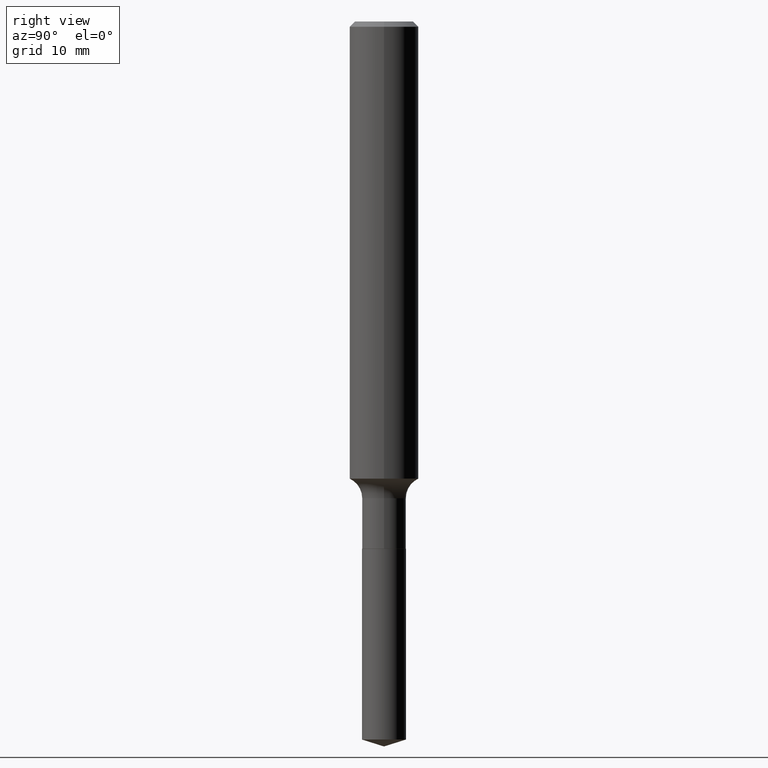
[diagram: clean part render]
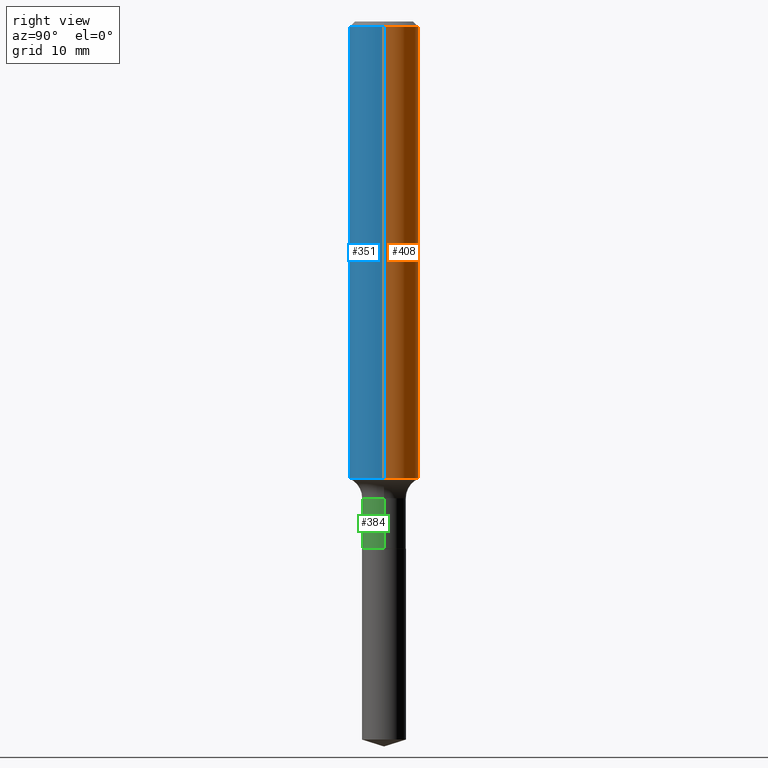
[diagram: same view with three faces highlighted in distinct colors, each labeled with its STEP entity id]
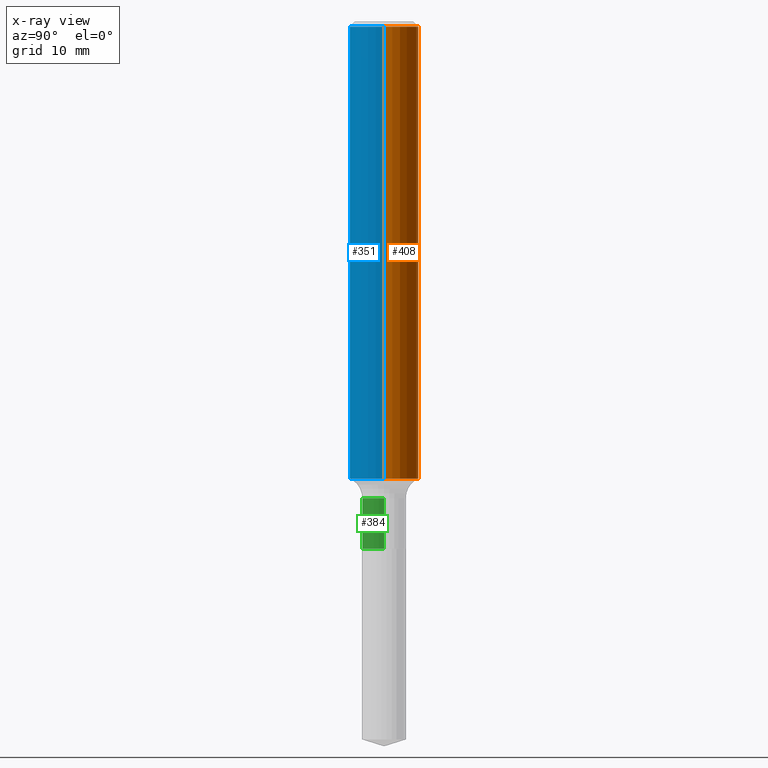
[diagram: x-ray of the same camera — body ghosted, the three highlighted faces saturated]
A machine part, right view with three faces highlighted in distinct colors.
The next image is the same camera in x-ray (body ghosted, the three faces saturated) — at least one of them is partly hidden behind the body in this view.
Their STEP definitions:

[orange] entity #408 — the highlighted cylindrical surface (edge-blend (fillet) strip) has radius 3.175 mm, axis along (-0, 0, 1).
#9 = LINE ( 'NONE', #315, #55 ) ;
#20 = DIRECTION ( 'NONE',  ( -2.445468806185136597E-29, 3.491481338843145583E-15, 1.000000000000000000 ) ) ;
#50 = DIRECTION ( 'NONE',  ( -2.445468806185136877E-29, 3.491481338843145188E-15, 1.000000000000000000 ) ) ;
#55 = VECTOR ( 'NONE', #162, 39.37007874015748143 ) ;
#71 = CARTESIAN_POINT ( 'NONE',  ( 4.585254011597163874E-31, -6.546527510330944066E-17, -0.01875000000000013461 ) ) ;
#98 = AXIS2_PLACEMENT_3D ( 'NONE', #284, #433, #322 ) ;
#99 = CIRCLE ( 'NONE', #211, 0.1250000000000000000 ) ;
#103 = ORIENTED_EDGE ( 'NONE', *, *, #168, .T. ) ;
#105 = CIRCLE ( 'NONE', #98, 0.1250000000000001943 ) ;
#113 = AXIS2_PLACEMENT_3D ( 'NONE', #319, #20, #173 ) ;
#127 = CARTESIAN_POINT ( 'NONE',  ( 0.1250000000000001110, -8.728703347107841277E-16, 6.095220969744924646E-30 ) ) ;
#162 = DIRECTION ( 'NONE',  ( -2.445468806185136877E-29, 3.491481338843145188E-15, 1.000000000000000000 ) ) ;
#168 = EDGE_CURVE ( 'NONE', #250, #253, #9, .T. ) ;
#173 = DIRECTION ( 'NONE',  ( 1.000000000000000000, -6.982962677686266711E-15, 4.876176775795935232E-29 ) ) ;
#176 = CYLINDRICAL_SURFACE ( 'NONE', #113, 0.1250000000000001110 ) ;
#204 = VECTOR ( 'NONE', #50, 39.37007874015748143 ) ;
#208 = LINE ( 'NONE', #127, #204 ) ;
#211 = AXIS2_PLACEMENT_3D ( 'NONE', #71, #443, #261 ) ;
#214 = ORIENTED_EDGE ( 'NONE', *, *, #460, .F. ) ;
#218 = EDGE_LOOP ( 'NONE', ( #254, #103, #214, #361 ) ) ;
#250 = VERTEX_POINT ( 'NONE', #419 ) ;
#252 = CARTESIAN_POINT ( 'NONE',  ( -0.1250000000000000000, -2.034092601808150261E-15, -0.01875000000000013461 ) ) ;
#253 = VERTEX_POINT ( 'NONE', #252 ) ;
#254 = ORIENTED_EDGE ( 'NONE', *, *, #276, .T. ) ;
#256 = EDGE_CURVE ( 'NONE', #332, #480, #208, .T. ) ;
#261 = DIRECTION ( 'NONE',  ( 1.000000000000000000, -6.982962677686266711E-15, 0.000000000000000000 ) ) ;
#276 = EDGE_CURVE ( 'NONE', #332, #250, #105, .T. ) ;
#284 = CARTESIAN_POINT ( 'NONE',  ( 4.047723757608193363E-29, -5.779076767913244997E-15, -1.655193371254867873 ) ) ;
#315 = CARTESIAN_POINT ( 'NONE',  ( -0.1250000000000001110, 8.881784197001260212E-16, -6.148668862818637832E-30 ) ) ;
#319 = CARTESIAN_POINT ( 'NONE',  ( 0.000000000000000000, 0.000000000000000000, 0.000000000000000000 ) ) ;
#322 = DIRECTION ( 'NONE',  ( 1.000000000000000000, -6.982962677686267499E-15, 0.000000000000000000 ) ) ;
#332 = VERTEX_POINT ( 'NONE', #440 ) ;
#358 = FACE_OUTER_BOUND ( 'NONE', #218, .T. ) ;
#361 = ORIENTED_EDGE ( 'NONE', *, *, #256, .F. ) ;
#401 = CARTESIAN_POINT ( 'NONE',  ( 0.1250000000000000000, -9.383356098140928781E-16, -0.01875000000000013461 ) ) ;
#408 = ADVANCED_FACE ( 'NONE', ( #358 ), #176, .T. ) ;
#419 = CARTESIAN_POINT ( 'NONE',  ( -0.1250000000000001665, -4.890898348213118976E-15, -1.655193371254867873 ) ) ;
#433 = DIRECTION ( 'NONE',  ( -2.445468806185136597E-29, 3.491481338843145583E-15, 1.000000000000000000 ) ) ;
#440 = CARTESIAN_POINT ( 'NONE',  ( 0.1250000000000001665, -6.651947102624029913E-15, -1.655193371254867873 ) ) ;
#443 = DIRECTION ( 'NONE',  ( -2.445468806185136597E-29, 3.491481338843145583E-15, 1.000000000000000000 ) ) ;
#460 = EDGE_CURVE ( 'NONE', #480, #253, #99, .T. ) ;
#480 = VERTEX_POINT ( 'NONE', #401 ) ;

[blue] entity #351 — the highlighted cylindrical surface (edge-blend (fillet) strip) has radius 3.175 mm, axis along (-0, 0, 1).
#5 = DIRECTION ( 'NONE',  ( -2.445468806185136597E-29, 3.491481338843145583E-15, 1.000000000000000000 ) ) ;
#9 = LINE ( 'NONE', #315, #55 ) ;
#46 = CARTESIAN_POINT ( 'NONE',  ( 4.047723757608193363E-29, -5.779076767913244997E-15, -1.655193371254867873 ) ) ;
#50 = DIRECTION ( 'NONE',  ( -2.445468806185136877E-29, 3.491481338843145188E-15, 1.000000000000000000 ) ) ;
#55 = VECTOR ( 'NONE', #162, 39.37007874015748143 ) ;
#68 = ORIENTED_EDGE ( 'NONE', *, *, #256, .T. ) ;
#78 = EDGE_CURVE ( 'NONE', #250, #332, #450, .T. ) ;
#100 = CARTESIAN_POINT ( 'NONE',  ( 0.000000000000000000, 0.000000000000000000, 0.000000000000000000 ) ) ;
#127 = CARTESIAN_POINT ( 'NONE',  ( 0.1250000000000001110, -8.728703347107841277E-16, 6.095220969744924646E-30 ) ) ;
#128 = AXIS2_PLACEMENT_3D ( 'NONE', #100, #431, #390 ) ;
#133 = DIRECTION ( 'NONE',  ( 1.000000000000000000, -6.982962677686266711E-15, 0.000000000000000000 ) ) ;
#162 = DIRECTION ( 'NONE',  ( -2.445468806185136877E-29, 3.491481338843145188E-15, 1.000000000000000000 ) ) ;
#168 = EDGE_CURVE ( 'NONE', #250, #253, #9, .T. ) ;
#178 = EDGE_LOOP ( 'NONE', ( #452, #339, #68, #290 ) ) ;
#204 = VECTOR ( 'NONE', #50, 39.37007874015748143 ) ;
#208 = LINE ( 'NONE', #127, #204 ) ;
#215 = DIRECTION ( 'NONE',  ( -2.445468806185136597E-29, 3.491481338843145583E-15, 1.000000000000000000 ) ) ;
#220 = CIRCLE ( 'NONE', #349, 0.1250000000000000000 ) ;
#242 = AXIS2_PLACEMENT_3D ( 'NONE', #46, #5, #378 ) ;
#250 = VERTEX_POINT ( 'NONE', #419 ) ;
#252 = CARTESIAN_POINT ( 'NONE',  ( -0.1250000000000000000, -2.034092601808150261E-15, -0.01875000000000013461 ) ) ;
#253 = VERTEX_POINT ( 'NONE', #252 ) ;
#256 = EDGE_CURVE ( 'NONE', #332, #480, #208, .T. ) ;
#290 = ORIENTED_EDGE ( 'NONE', *, *, #414, .F. ) ;
#315 = CARTESIAN_POINT ( 'NONE',  ( -0.1250000000000001110, 8.881784197001260212E-16, -6.148668862818637832E-30 ) ) ;
#332 = VERTEX_POINT ( 'NONE', #440 ) ;
#339 = ORIENTED_EDGE ( 'NONE', *, *, #78, .T. ) ;
#349 = AXIS2_PLACEMENT_3D ( 'NONE', #472, #215, #133 ) ;
#351 = ADVANCED_FACE ( 'NONE', ( #362 ), #352, .T. ) ;
#352 = CYLINDRICAL_SURFACE ( 'NONE', #128, 0.1250000000000001110 ) ;
#362 = FACE_OUTER_BOUND ( 'NONE', #178, .T. ) ;
#378 = DIRECTION ( 'NONE',  ( 1.000000000000000000, -6.982962677686267499E-15, 0.000000000000000000 ) ) ;
#390 = DIRECTION ( 'NONE',  ( 1.000000000000000000, -6.982962677686266711E-15, 4.876176775795935232E-29 ) ) ;
#401 = CARTESIAN_POINT ( 'NONE',  ( 0.1250000000000000000, -9.383356098140928781E-16, -0.01875000000000013461 ) ) ;
#414 = EDGE_CURVE ( 'NONE', #253, #480, #220, .T. ) ;
#419 = CARTESIAN_POINT ( 'NONE',  ( -0.1250000000000001665, -4.890898348213118976E-15, -1.655193371254867873 ) ) ;
#431 = DIRECTION ( 'NONE',  ( -2.445468806185136597E-29, 3.491481338843145583E-15, 1.000000000000000000 ) ) ;
#440 = CARTESIAN_POINT ( 'NONE',  ( 0.1250000000000001665, -6.651947102624029913E-15, -1.655193371254867873 ) ) ;
#450 = CIRCLE ( 'NONE', #242, 0.1250000000000001943 ) ;
#452 = ORIENTED_EDGE ( 'NONE', *, *, #168, .F. ) ;
#472 = CARTESIAN_POINT ( 'NONE',  ( 4.585254011597163874E-31, -6.546527510330944066E-17, -0.01875000000000013461 ) ) ;
#480 = VERTEX_POINT ( 'NONE', #401 ) ;

[green] entity #384 — the highlighted cylindrical surface (edge-blend (fillet) strip) has radius 2.0193 mm, axis along (-0, 0, 1).
#1 = ORIENTED_EDGE ( 'NONE', *, *, #146, .F. ) ;
#17 = EDGE_LOOP ( 'NONE', ( #1, #227, #136, #366 ) ) ;
#18 = CIRCLE ( 'NONE', #278, 0.07950000000000000122 ) ;
#32 = LINE ( 'NONE', #485, #326 ) ;
#36 = EDGE_CURVE ( 'NONE', #260, #167, #32, .T. ) ;
#57 = EDGE_CURVE ( 'NONE', #231, #260, #18, .T. ) ;
#70 = CARTESIAN_POINT ( 'NONE',  ( 4.667177216604333684E-29, -6.663492135182144179E-15, -1.908500000000000085 ) ) ;
#73 = AXIS2_PLACEMENT_3D ( 'NONE', #342, #383, #165 ) ;
#92 = DIRECTION ( 'NONE',  ( 1.000000000000000000, -6.982962677686267499E-15, 4.876176775795935793E-29 ) ) ;
#93 = EDGE_CURVE ( 'NONE', #247, #167, #468, .T. ) ;
#120 = DIRECTION ( 'NONE',  ( -2.445468806185136877E-29, 3.491481338843145188E-15, 1.000000000000000000 ) ) ;
#136 = ORIENTED_EDGE ( 'NONE', *, *, #36, .T. ) ;
#146 = EDGE_CURVE ( 'NONE', #231, #247, #202, .T. ) ;
#165 = DIRECTION ( 'NONE',  ( 1.000000000000000000, -6.982962677686267499E-15, 0.000000000000000000 ) ) ;
#166 = CARTESIAN_POINT ( 'NONE',  ( 0.000000000000000000, 0.000000000000000000, 0.000000000000000000 ) ) ;
#167 = VERTEX_POINT ( 'NONE', #198 ) ;
#169 = CYLINDRICAL_SURFACE ( 'NONE', #235, 0.07950000000000000122 ) ;
#175 = DIRECTION ( 'NONE',  ( -2.445468806185136597E-29, 3.491481338843145583E-15, 1.000000000000000000 ) ) ;
#198 = CARTESIAN_POINT ( 'NONE',  ( 0.07949999999999998734, -6.581791471853211501E-15, -1.726099999999999968 ) ) ;
#202 = LINE ( 'NONE', #348, #370 ) ;
#225 = DIRECTION ( 'NONE',  ( -2.445468806185136597E-29, 3.491481338843145583E-15, 1.000000000000000000 ) ) ;
#227 = ORIENTED_EDGE ( 'NONE', *, *, #57, .T. ) ;
#231 = VERTEX_POINT ( 'NONE', #268 ) ;
#235 = AXIS2_PLACEMENT_3D ( 'NONE', #166, #175, #92 ) ;
#236 = CARTESIAN_POINT ( 'NONE',  ( -0.07949999999999998734, -5.780187562150368763E-15, -1.726099999999999968 ) ) ;
#247 = VERTEX_POINT ( 'NONE', #236 ) ;
#260 = VERTEX_POINT ( 'NONE', #360 ) ;
#268 = CARTESIAN_POINT ( 'NONE',  ( -0.07950000000000000122, -5.780187562150368763E-15, -1.908500000000000085 ) ) ;
#278 = AXIS2_PLACEMENT_3D ( 'NONE', #70, #225, #368 ) ;
#326 = VECTOR ( 'NONE', #491, 39.37007874015748143 ) ;
#342 = CARTESIAN_POINT ( 'NONE',  ( 4.221123706356164008E-29, -6.026645938977152856E-15, -1.726099999999999968 ) ) ;
#348 = CARTESIAN_POINT ( 'NONE',  ( -0.07950000000000000122, 5.648814749292796564E-16, -3.910553396752650127E-30 ) ) ;
#353 = FACE_OUTER_BOUND ( 'NONE', #17, .T. ) ;
#360 = CARTESIAN_POINT ( 'NONE',  ( 0.07950000000000000122, -7.218637668058202036E-15, -1.908500000000000085 ) ) ;
#366 = ORIENTED_EDGE ( 'NONE', *, *, #93, .F. ) ;
#368 = DIRECTION ( 'NONE',  ( 1.000000000000000000, -6.982962677686265922E-15, 0.000000000000000000 ) ) ;
#370 = VECTOR ( 'NONE', #120, 39.37007874015748143 ) ;
#383 = DIRECTION ( 'NONE',  ( -2.445468806185136597E-29, 3.491481338843145583E-15, 1.000000000000000000 ) ) ;
#384 = ADVANCED_FACE ( 'NONE', ( #353 ), #169, .T. ) ;
#468 = CIRCLE ( 'NONE', #73, 0.07949999999999998734 ) ;
#485 = CARTESIAN_POINT ( 'NONE',  ( 0.07950000000000000122, -5.551455328760582508E-16, 3.876560536757768871E-30 ) ) ;
#491 = DIRECTION ( 'NONE',  ( -2.445468806185136877E-29, 3.491481338843145188E-15, 1.000000000000000000 ) ) ;